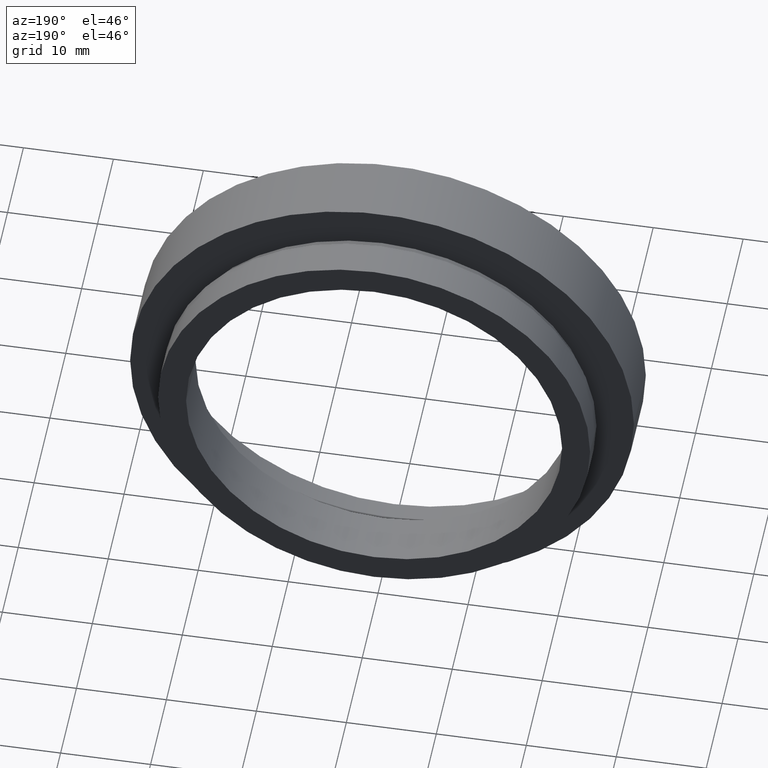
[diagram: clean part render]
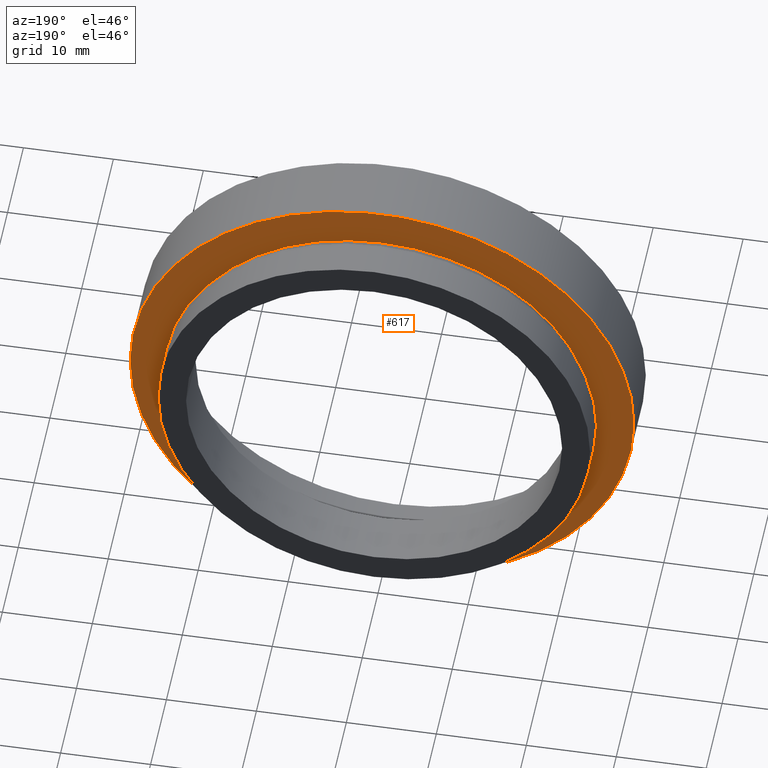
[diagram: same view with one face highlighted and labeled with its STEP entity id]
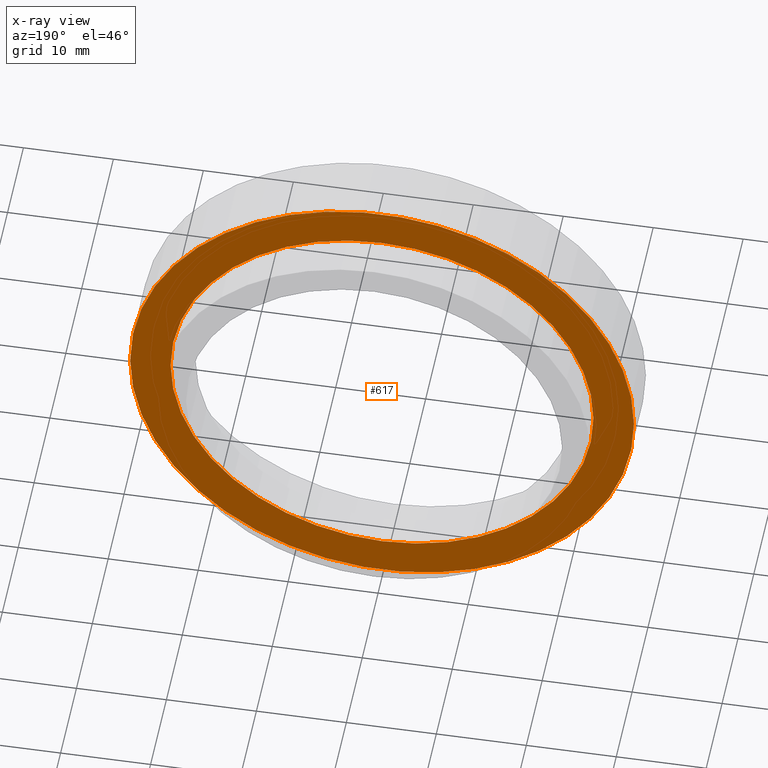
[diagram: x-ray of the same camera — body ghosted, the highlighted face saturated]
A machine part, auxiliary view. The second image highlights one B-rep face of the part: STEP entity #617.
The next image is the same camera in x-ray: the body ghosted, the highlighted face saturated — about 0% of this face is hidden behind the body in this view.
In plain terms, the highlighted planar face has unit normal (0, -1, 0).
Its self-contained STEP definition (entity closure, byte-faithful):
#6 = CIRCLE ( 'NONE', #237, 28.00000000000000000 ) ;
#29 = EDGE_CURVE ( 'NONE', #169, #343, #591, .T. ) ;
#35 = ORIENTED_EDGE ( 'NONE', *, *, #377, .F. ) ;
#54 = AXIS2_PLACEMENT_3D ( 'NONE', #140, #231, #241 ) ;
#64 = AXIS2_PLACEMENT_3D ( 'NONE', #571, #486, #291 ) ;
#70 = ORIENTED_EDGE ( 'NONE', *, *, #178, .T. ) ;
#73 = AXIS2_PLACEMENT_3D ( 'NONE', #458, #314, #165 ) ;
#89 = FACE_BOUND ( 'NONE', #445, .T. ) ;
#105 = DIRECTION ( 'NONE',  ( 1.000000000000000000, 1.224646799147351000E-016, 0.0000000000000000000 ) ) ;
#118 = DIRECTION ( 'NONE',  ( -1.224646799147351000E-016, 1.000000000000000000, -0.0000000000000000000 ) ) ;
#125 = CARTESIAN_POINT ( 'NONE',  ( 1.149455719078123100E-015, 7.499999999999996400, 0.0000000000000000000 ) ) ;
#140 = CARTESIAN_POINT ( 'NONE',  ( 1.149455719078123100E-015, 7.499999999999996400, 0.0000000000000000000 ) ) ;
#165 = DIRECTION ( 'NONE',  ( -1.000000000000000000, -1.239088197126290800E-016, 0.0000000000000000000 ) ) ;
#169 = VERTEX_POINT ( 'NONE', #454 ) ;
#178 = EDGE_CURVE ( 'NONE', #619, #607, #530, .T. ) ;
#196 = CIRCLE ( 'NONE', #54, 23.50000000000000000 ) ;
#210 = CARTESIAN_POINT ( 'NONE',  ( 23.50000000000000000, 7.500000000000000000, 0.0000000000000000000 ) ) ;
#215 = EDGE_CURVE ( 'NONE', #607, #619, #6, .T. ) ;
#223 = ORIENTED_EDGE ( 'NONE', *, *, #29, .F. ) ;
#231 = DIRECTION ( 'NONE',  ( -1.224646799147351000E-016, 1.000000000000000000, -0.0000000000000000000 ) ) ;
#237 = AXIS2_PLACEMENT_3D ( 'NONE', #125, #118, #418 ) ;
#241 = DIRECTION ( 'NONE',  ( -1.000000000000000000, -1.107270303814983300E-016, 0.0000000000000000000 ) ) ;
#263 = FACE_OUTER_BOUND ( 'NONE', #325, .T. ) ;
#291 = DIRECTION ( 'NONE',  ( -1.000000000000000000, -1.107270303814983300E-016, 0.0000000000000000000 ) ) ;
#306 = ORIENTED_EDGE ( 'NONE', *, *, #215, .T. ) ;
#314 = DIRECTION ( 'NONE',  ( -1.224646799147351000E-016, 1.000000000000000000, -0.0000000000000000000 ) ) ;
#325 = EDGE_LOOP ( 'NONE', ( #306, #70 ) ) ;
#329 = CARTESIAN_POINT ( 'NONE',  ( -23.50000000000000000, 7.499999999999993800, 0.0000000000000000000 ) ) ;
#343 = VERTEX_POINT ( 'NONE', #329 ) ;
#353 = CARTESIAN_POINT ( 'NONE',  ( -28.00000000000000000, 7.499999999999992900, 0.0000000000000000000 ) ) ;
#358 = PLANE ( 'NONE',  #489 ) ;
#377 = EDGE_CURVE ( 'NONE', #343, #169, #196, .T. ) ;
#401 = DIRECTION ( 'NONE',  ( 1.224646799147351000E-016, -1.000000000000000000, 0.0000000000000000000 ) ) ;
#409 = CARTESIAN_POINT ( 'NONE',  ( 28.00000000000000400, 7.500000000000000000, 3.429011037612589700E-015 ) ) ;
#418 = DIRECTION ( 'NONE',  ( -1.000000000000000000, -1.239088197126290800E-016, 0.0000000000000000000 ) ) ;
#445 = EDGE_LOOP ( 'NONE', ( #35, #223 ) ) ;
#454 = CARTESIAN_POINT ( 'NONE',  ( 23.50000000000000000, 7.499999999999999100, 2.877919977996280300E-015 ) ) ;
#458 = CARTESIAN_POINT ( 'NONE',  ( 1.149455719078123100E-015, 7.499999999999996400, 0.0000000000000000000 ) ) ;
#486 = DIRECTION ( 'NONE',  ( -1.224646799147351000E-016, 1.000000000000000000, -0.0000000000000000000 ) ) ;
#489 = AXIS2_PLACEMENT_3D ( 'NONE', #210, #401, #105 ) ;
#530 = CIRCLE ( 'NONE', #73, 28.00000000000000000 ) ;
#571 = CARTESIAN_POINT ( 'NONE',  ( 1.149455719078123100E-015, 7.499999999999996400, 0.0000000000000000000 ) ) ;
#591 = CIRCLE ( 'NONE', #64, 23.50000000000000000 ) ;
#607 = VERTEX_POINT ( 'NONE', #353 ) ;
#617 = ADVANCED_FACE ( 'NONE', ( #89, #263 ), #358, .F. ) ;
#619 = VERTEX_POINT ( 'NONE', #409 ) ;